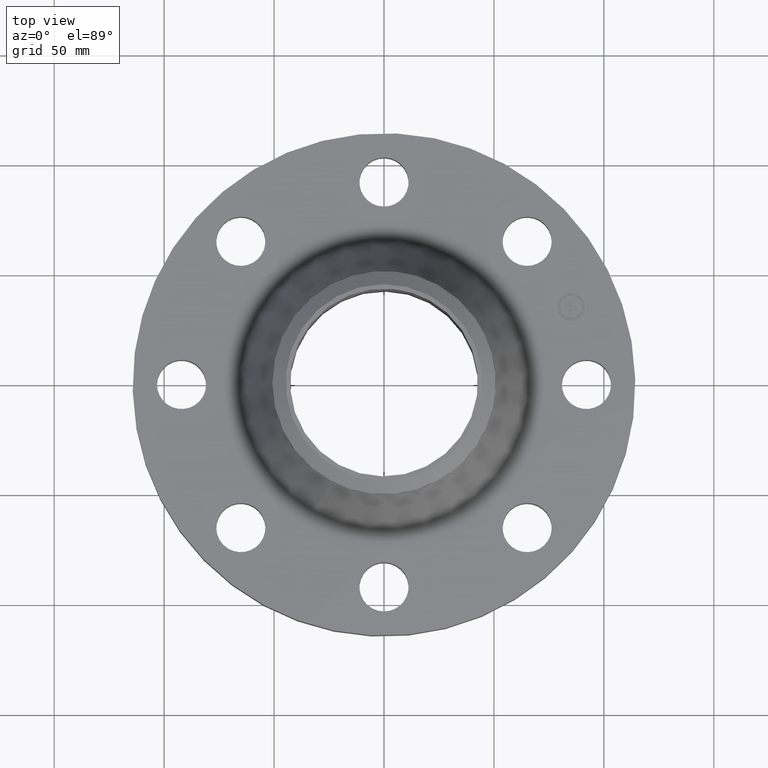
[diagram: clean part render]
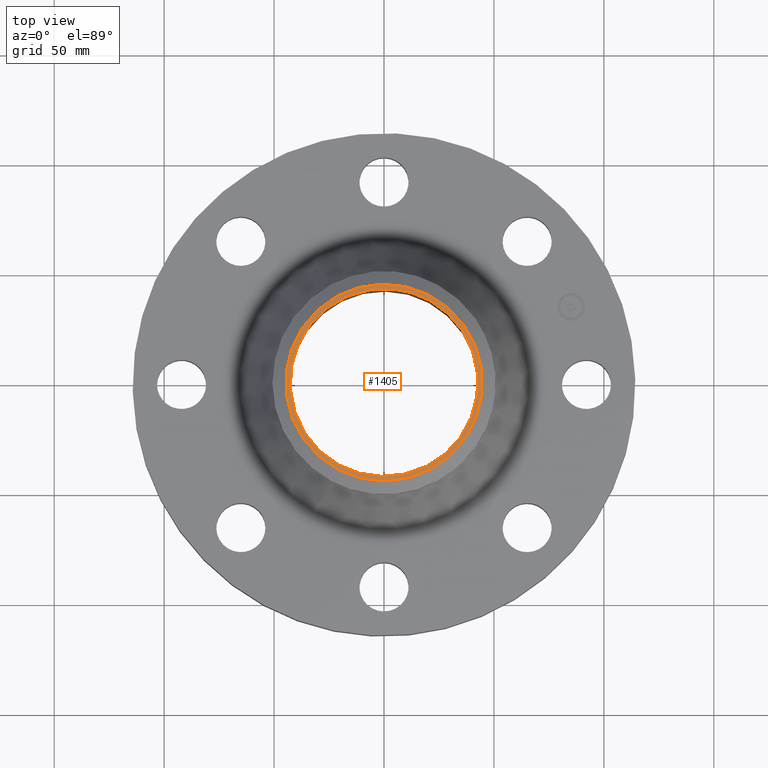
[diagram: same view with one face highlighted and labeled with its STEP entity id]
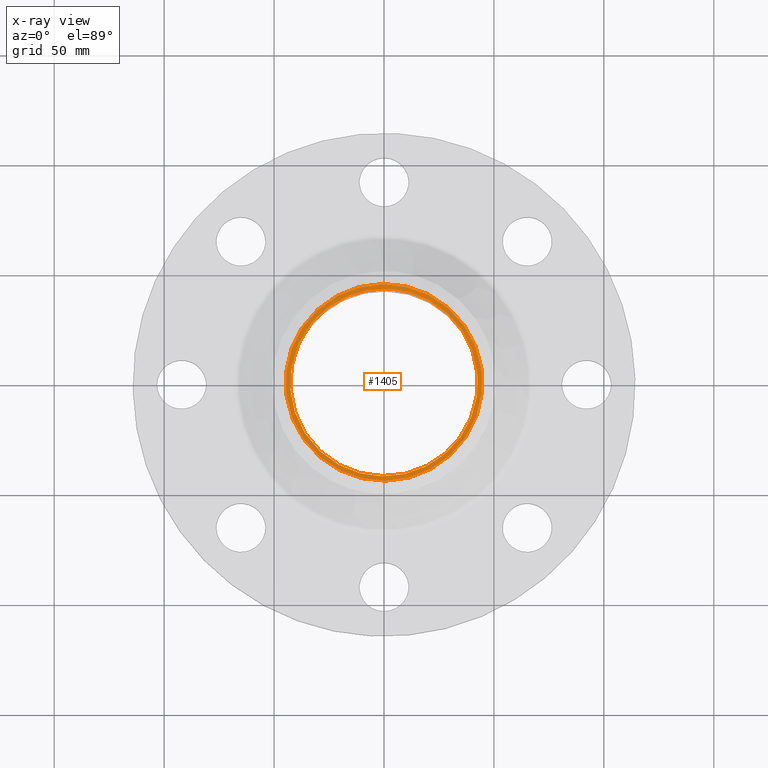
[diagram: x-ray of the same camera — body ghosted, the highlighted face saturated]
A machine part, top view. The second image highlights one B-rep face of the part: STEP entity #1405.
The next image is the same camera in x-ray: the body ghosted, the highlighted face saturated — about 0% of this face is hidden behind the body in this view.
In plain terms, the highlighted planar face has unit normal (0, 0, -1).
Its self-contained STEP definition (entity closure, byte-faithful):
#1070=AXIS2_PLACEMENT_3D('Circle Axis2P3D',#1068,#1069,$) ;
#1381=AXIS2_PLACEMENT_3D('Plane Axis2P3D',#1378,#1379,#1380) ;
#1385=AXIS2_PLACEMENT_3D('Circle Axis2P3D',#1383,#1384,$) ;
#1394=AXIS2_PLACEMENT_3D('Circle Axis2P3D',#1392,#1393,$) ;
#1068=CARTESIAN_POINT('Axis2P3D Location',(0.,0.,3.13000000002)) ;
#1072=CARTESIAN_POINT('Vertex',(0.806393755937,1.47609386914,3.13000000001)) ;
#1074=CARTESIAN_POINT('Vertex',(-0.806393755938,-1.47609386911,3.13000000002)) ;
#1107=CARTESIAN_POINT('Control Point',(-0.806393755938,-1.47609386911,3.13000000001)) ;
#1108=CARTESIAN_POINT('Control Point',(-1.0382580387,-1.34942583413,3.13000000001)) ;
#1109=CARTESIAN_POINT('Control Point',(-1.24525111095,-1.17723135369,3.13000000001)) ;
#1110=CARTESIAN_POINT('Control Point',(-1.41541385741,-0.965985300977,3.13000000001)) ;
#1111=CARTESIAN_POINT('Control Point',(-1.66374113756,-0.488154948086,3.13000000001)) ;
#1112=CARTESIAN_POINT('Control Point',(-1.71295377805,0.0480972316092,3.13000000001)) ;
#1113=CARTESIAN_POINT('Control Point',(-1.6839034936,0.317793979908,3.13000000001)) ;
#1114=CARTESIAN_POINT('Control Point',(-1.52162031457,0.831264966444,3.13000000001)) ;
#1115=CARTESIAN_POINT('Control Point',(-1.17723135369,1.24525111095,3.13000000001)) ;
#1116=CARTESIAN_POINT('Control Point',(-0.965985300979,1.4154138574,3.13000000001)) ;
#1117=CARTESIAN_POINT('Control Point',(-0.488154948088,1.66374113756,3.13000000001)) ;
#1118=CARTESIAN_POINT('Control Point',(0.0480972316076,1.71295377805,3.13000000002)) ;
#1119=CARTESIAN_POINT('Control Point',(0.317793979907,1.6839034936,3.13000000002)) ;
#1120=CARTESIAN_POINT('Control Point',(0.574529473175,1.60276190409,3.13000000002)) ;
#1121=CARTESIAN_POINT('Control Point',(0.806393755935,1.47609386911,3.13000000002)) ;
#1378=CARTESIAN_POINT('Axis2P3D Location',(0.,2.00000000001,3.13000000001)) ;
#1383=CARTESIAN_POINT('Axis2P3D Location',(3.08535699177E-011,-2.47738837319E-012,3.13000000001)) ;
#1387=CARTESIAN_POINT('Vertex',(0.844143798346,-1.54519485823,3.13000000001)) ;
#1389=CARTESIAN_POINT('Vertex',(-0.844143798347,1.54519485823,3.13000000001)) ;
#1392=CARTESIAN_POINT('Axis2P3D Location',(0.,-1.93329167198E-011,3.13000000001)) ;
#1069=DIRECTION('Axis2P3D Direction',(0.,0.,-0.0393700787402)) ;
#1379=DIRECTION('Axis2P3D Direction',(0.,0.,-0.0393700787402)) ;
#1380=DIRECTION('Axis2P3D XDirection',(0.0393700787402,0.,0.)) ;
#1384=DIRECTION('Axis2P3D Direction',(0.,0.,-0.0393700787402)) ;
#1393=DIRECTION('Axis2P3D Direction',(0.,0.,-0.0393700787402)) ;
#1398=ORIENTED_EDGE('',*,*,#1391,.T.) ;
#1399=ORIENTED_EDGE('',*,*,#1396,.T.) ;
#1402=ORIENTED_EDGE('',*,*,#1122,.T.) ;
#1403=ORIENTED_EDGE('',*,*,#1076,.T.) ;
#1404=FACE_BOUND('',#1401,.T.) ;
#1405=ADVANCED_FACE('PartBody',(#1400,#1404),#1382,.F.) ;
#1106=B_SPLINE_CURVE_WITH_KNOTS('',5,(#1107,#1108,#1109,#1110,#1111,#1112,#1113,#1114,#1115,#1116,#1117,#1118,#1119,#1120,#1121),.UNSPECIFIED.,.F.,.U.,(6,3,3,3,6),(-67.1088173108,-33.5544086554,0.,33.5544086554,67.1088173108),.UNSPECIFIED.) ;
#1071=CIRCLE('generated circle',#1070,1.68200000001) ;
#1386=CIRCLE('generated circle',#1385,1.76074015748) ;
#1395=CIRCLE('generated circle',#1394,1.76074015748) ;
#1076=EDGE_CURVE('',#1073,#1075,#1071,.T.) ;
#1122=EDGE_CURVE('',#1075,#1073,#1106,.T.) ;
#1391=EDGE_CURVE('',#1388,#1390,#1386,.F.) ;
#1396=EDGE_CURVE('',#1390,#1388,#1395,.F.) ;
#1397=EDGE_LOOP('',(#1398,#1399)) ;
#1401=EDGE_LOOP('',(#1402,#1403)) ;
#1400=FACE_OUTER_BOUND('',#1397,.T.) ;
#1382=PLANE('',#1381) ;
#1073=VERTEX_POINT('',#1072) ;
#1075=VERTEX_POINT('',#1074) ;
#1388=VERTEX_POINT('',#1387) ;
#1390=VERTEX_POINT('',#1389) ;